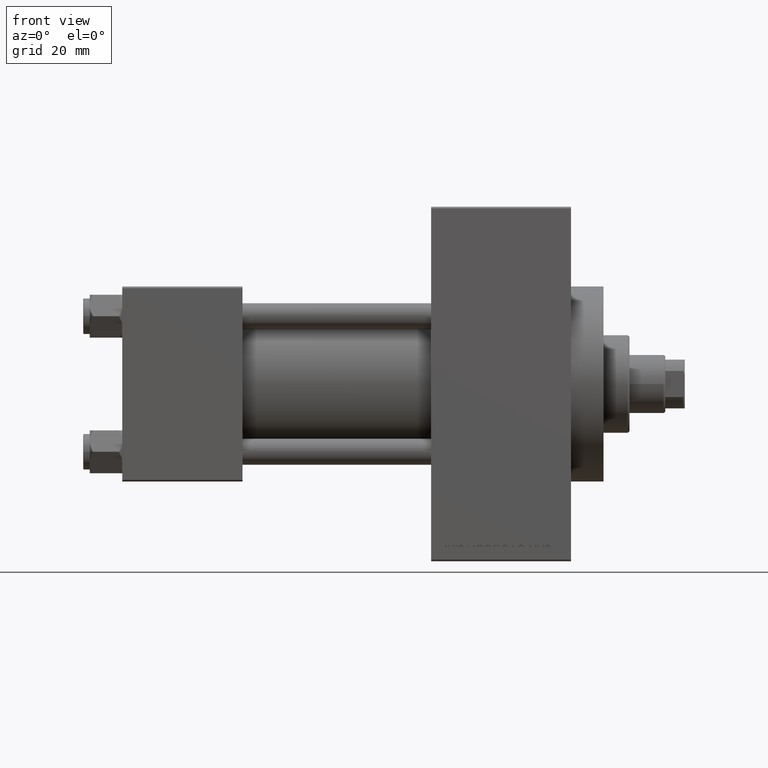
[diagram: clean part render]
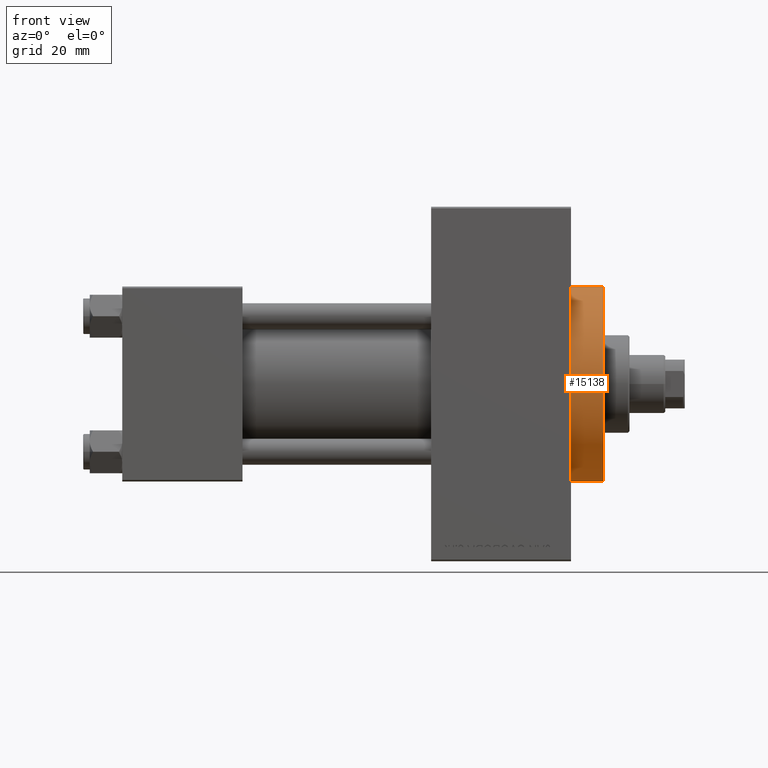
[diagram: same view with one face highlighted and labeled with its STEP entity id]
A machine part, front view. The second image highlights one B-rep face of the part: STEP entity #15138.
In plain terms, the highlighted cylindrical surface (partial cylindrical patch) has radius 30 mm, axis along (-1, -0, -0).
Its self-contained STEP definition (entity closure, byte-faithful):
#237 = VERTEX_POINT ( 'NONE', #34735 ) ;
#2900 = AXIS2_PLACEMENT_3D ( 'NONE', #5318, #20670, #17201 ) ;
#2956 = LINE ( 'NONE', #25727, #35747 ) ;
#3496 = ORIENTED_EDGE ( 'NONE', *, *, #30961, .F. ) ;
#4419 = AXIS2_PLACEMENT_3D ( 'NONE', #5245, #16630, #4993 ) ;
#4993 = DIRECTION ( 'NONE',  ( 0.000000000000000000, 0.000000000000000000, -1.000000000000000000 ) ) ;
#5245 = CARTESIAN_POINT ( 'NONE',  ( 138.0000000000000000, 0.000000000000000000, 0.000000000000000000 ) ) ;
#5318 = CARTESIAN_POINT ( 'NONE',  ( 148.0000000000000284, 0.000000000000000000, 0.000000000000000000 ) ) ;
#5513 = EDGE_CURVE ( 'NONE', #33802, #237, #30485, .T. ) ;
#7881 = VERTEX_POINT ( 'NONE', #36337 ) ;
#9311 = CARTESIAN_POINT ( 'NONE',  ( 148.0000000000000284, 0.000000000000000000, 30.00000000000000000 ) ) ;
#10864 = CIRCLE ( 'NONE', #13251, 30.00000000000000000 ) ;
#12777 = EDGE_CURVE ( 'NONE', #42287, #237, #14474, .T. ) ;
#13251 = AXIS2_PLACEMENT_3D ( 'NONE', #18538, #38256, #16473 ) ;
#14474 = LINE ( 'NONE', #29571, #18222 ) ;
#15138 = ADVANCED_FACE ( 'NONE', ( #19036 ), #30160, .T. ) ;
#16012 = EDGE_CURVE ( 'NONE', #18781, #7881, #2956, .T. ) ;
#16377 = ORIENTED_EDGE ( 'NONE', *, *, #5513, .T. ) ;
#16473 = DIRECTION ( 'NONE',  ( 0.000000000000000000, 0.000000000000000000, -1.000000000000000000 ) ) ;
#16630 = DIRECTION ( 'NONE',  ( 1.000000000000000000, 0.000000000000000000, 0.000000000000000000 ) ) ;
#17201 = DIRECTION ( 'NONE',  ( 0.000000000000000000, 0.000000000000000000, -1.000000000000000000 ) ) ;
#18222 = VECTOR ( 'NONE', #48622, 1000.000000000000000 ) ;
#18538 = CARTESIAN_POINT ( 'NONE',  ( 138.0000000000000000, 0.000000000000000000, 0.000000000000000000 ) ) ;
#18781 = VERTEX_POINT ( 'NONE', #9311 ) ;
#19036 = FACE_OUTER_BOUND ( 'NONE', #41120, .T. ) ;
#20670 = DIRECTION ( 'NONE',  ( 1.000000000000000000, 0.000000000000000000, 0.000000000000000000 ) ) ;
#25727 = CARTESIAN_POINT ( 'NONE',  ( 148.0000000000000284, 0.000000000000000000, 30.00000000000000000 ) ) ;
#28902 = ORIENTED_EDGE ( 'NONE', *, *, #16012, .T. ) ;
#29571 = CARTESIAN_POINT ( 'NONE',  ( 148.0000000000000284, 3.673940397442059178E-15, -30.00000000000000000 ) ) ;
#30160 = CYLINDRICAL_SURFACE ( 'NONE', #42822, 30.00000000000000000 ) ;
#30418 = DIRECTION ( 'NONE',  ( 0.000000000000000000, 0.000000000000000000, 1.000000000000000000 ) ) ;
#30485 = CIRCLE ( 'NONE', #4419, 30.00000000000000000 ) ;
#30961 = EDGE_CURVE ( 'NONE', #18781, #42287, #44020, .T. ) ;
#30994 = ORIENTED_EDGE ( 'NONE', *, *, #12777, .F. ) ;
#31963 = EDGE_CURVE ( 'NONE', #7881, #33802, #10864, .T. ) ;
#33802 = VERTEX_POINT ( 'NONE', #34701 ) ;
#34701 = CARTESIAN_POINT ( 'NONE',  ( 138.0000000000000000, -30.00000000000000000, 0.000000000000000000 ) ) ;
#34735 = CARTESIAN_POINT ( 'NONE',  ( 138.0000000000000000, 3.673940397442059178E-15, -30.00000000000000000 ) ) ;
#35747 = VECTOR ( 'NONE', #48243, 1000.000000000000000 ) ;
#36337 = CARTESIAN_POINT ( 'NONE',  ( 138.0000000000000000, 0.000000000000000000, 30.00000000000000000 ) ) ;
#37847 = CARTESIAN_POINT ( 'NONE',  ( 148.0000000000000284, 0.000000000000000000, 0.000000000000000000 ) ) ;
#38082 = DIRECTION ( 'NONE',  ( -1.000000000000000000, -0.000000000000000000, -0.000000000000000000 ) ) ;
#38256 = DIRECTION ( 'NONE',  ( 1.000000000000000000, 0.000000000000000000, 0.000000000000000000 ) ) ;
#39043 = CARTESIAN_POINT ( 'NONE',  ( 148.0000000000000284, 3.673940397442059178E-15, -30.00000000000000000 ) ) ;
#41120 = EDGE_LOOP ( 'NONE', ( #30994, #3496, #28902, #45846, #16377 ) ) ;
#42287 = VERTEX_POINT ( 'NONE', #39043 ) ;
#42822 = AXIS2_PLACEMENT_3D ( 'NONE', #37847, #38082, #30418 ) ;
#44020 = CIRCLE ( 'NONE', #2900, 30.00000000000000000 ) ;
#45846 = ORIENTED_EDGE ( 'NONE', *, *, #31963, .T. ) ;
#48243 = DIRECTION ( 'NONE',  ( -1.000000000000000000, -0.000000000000000000, -0.000000000000000000 ) ) ;
#48622 = DIRECTION ( 'NONE',  ( -1.000000000000000000, -0.000000000000000000, -0.000000000000000000 ) ) ;